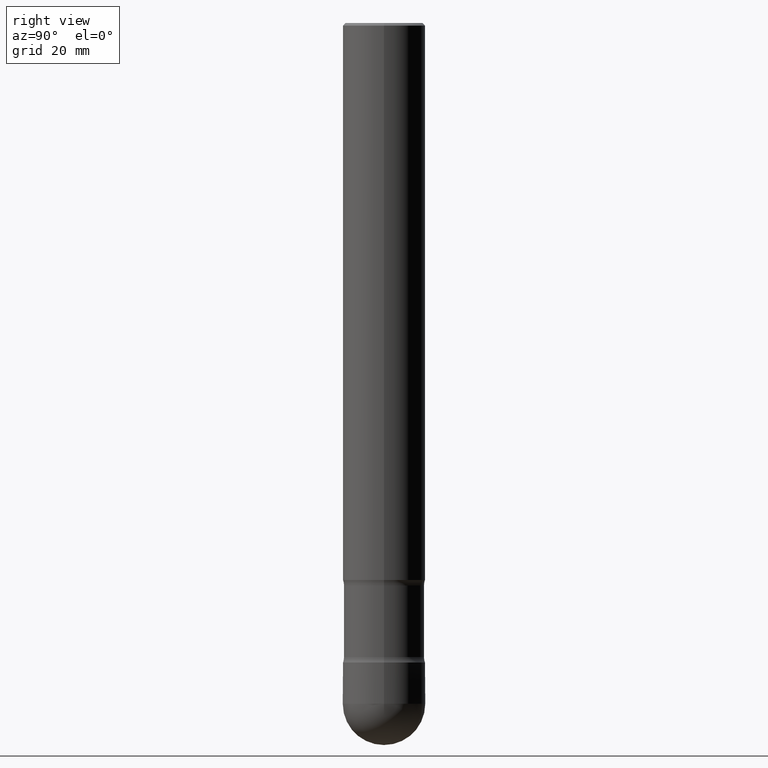
[diagram: clean part render]
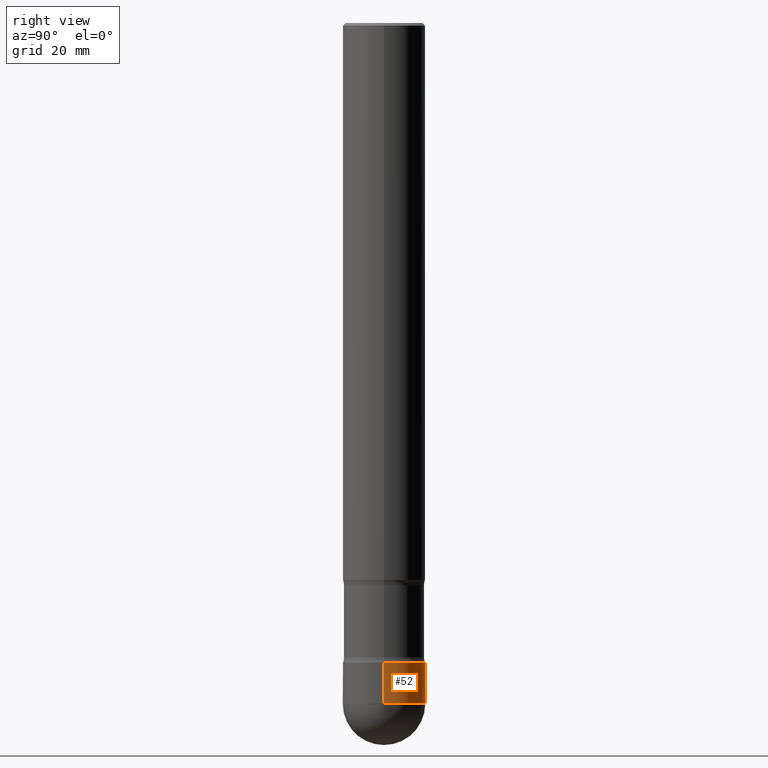
[diagram: same view with one face highlighted and labeled with its STEP entity id]
A machine part, right view. The second image highlights one B-rep face of the part: STEP entity #52.
In plain terms, the highlighted cylindrical surface (partial cylindrical patch) has radius 7.9997 mm, axis along (-0, 0, 1).
Its self-contained STEP definition (entity closure, byte-faithful):
#7 = DIRECTION ( 'NONE',  ( 1.000000000000000000, -6.982962677686271444E-15, 0.000000000000000000 ) ) ;
#10 = CIRCLE ( 'NONE', #543, 0.3149499999999991195 ) ;
#20 = ORIENTED_EDGE ( 'NONE', *, *, #110, .T. ) ;
#50 = VECTOR ( 'NONE', #412, 39.37007874015748143 ) ;
#52 = ADVANCED_FACE ( 'NONE', ( #314 ), #486, .T. ) ;
#58 = CARTESIAN_POINT ( 'NONE',  ( 0.3149499999999991195, -1.979416786726996296E-14, -5.196850000000000414 ) ) ;
#65 = CARTESIAN_POINT ( 'NONE',  ( -0.3149499999999991195, 2.237854346276429279E-15, -1.549218606675778192E-29 ) ) ;
#70 = LINE ( 'NONE', #420, #298 ) ;
#82 = CARTESIAN_POINT ( 'NONE',  ( 1.193853416491521798E-28, -1.704506274809835102E-14, -4.881899999999999906 ) ) ;
#85 = EDGE_LOOP ( 'NONE', ( #20, #125, #493, #282, #203 ) ) ;
#107 = DIRECTION ( 'NONE',  ( 1.000000000000000000, -6.982962677686271444E-15, 0.000000000000000000 ) ) ;
#110 = EDGE_CURVE ( 'NONE', #130, #199, #249, .T. ) ;
#125 = ORIENTED_EDGE ( 'NONE', *, *, #275, .T. ) ;
#130 = VERTEX_POINT ( 'NONE', #317 ) ;
#141 = DIRECTION ( 'NONE',  ( 1.000000000000000000, -6.982962677686266711E-15, 4.876176775795935793E-29 ) ) ;
#144 = CARTESIAN_POINT ( 'NONE',  ( 0.000000000000000000, 0.000000000000000000, 0.000000000000000000 ) ) ;
#148 = DIRECTION ( 'NONE',  ( -2.445468806185136597E-29, 3.491481338843145583E-15, 1.000000000000000000 ) ) ;
#161 = CARTESIAN_POINT ( 'NONE',  ( 1.270873456542322947E-28, -1.814470479576700463E-14, -5.196850000000000414 ) ) ;
#182 = CARTESIAN_POINT ( 'NONE',  ( 1.270873456542322947E-28, -1.814470479576700463E-14, -5.196850000000000414 ) ) ;
#197 = CARTESIAN_POINT ( 'NONE',  ( -0.3149499999999991195, -1.535702942565624815E-14, -5.196850000000000414 ) ) ;
#199 = VERTEX_POINT ( 'NONE', #197 ) ;
#203 = ORIENTED_EDGE ( 'NONE', *, *, #227, .T. ) ;
#211 = VERTEX_POINT ( 'NONE', #324 ) ;
#227 = EDGE_CURVE ( 'NONE', #452, #130, #10, .T. ) ;
#231 = CIRCLE ( 'NONE', #312, 0.3149499999999991195 ) ;
#236 = DIRECTION ( 'NONE',  ( -2.445468806185136597E-29, 3.491481338843145583E-15, 1.000000000000000000 ) ) ;
#249 = CIRCLE ( 'NONE', #468, 0.3149499999999991195 ) ;
#254 = EDGE_CURVE ( 'NONE', #452, #211, #70, .T. ) ;
#275 = EDGE_CURVE ( 'NONE', #199, #334, #456, .T. ) ;
#282 = ORIENTED_EDGE ( 'NONE', *, *, #254, .F. ) ;
#298 = VECTOR ( 'NONE', #327, 39.37007874015748143 ) ;
#312 = AXIS2_PLACEMENT_3D ( 'NONE', #82, #430, #521 ) ;
#314 = FACE_OUTER_BOUND ( 'NONE', #85, .T. ) ;
#317 = CARTESIAN_POINT ( 'NONE',  ( 2.199284095337412933E-15, 0.3149499999999813005, -5.196850000000001302 ) ) ;
#324 = CARTESIAN_POINT ( 'NONE',  ( 0.3149499999999991195, -1.924434684343563300E-14, -4.881899999999999906 ) ) ;
#327 = DIRECTION ( 'NONE',  ( -2.445468806185136877E-29, 3.491481338843145188E-15, 1.000000000000000000 ) ) ;
#334 = VERTEX_POINT ( 'NONE', #523 ) ;
#381 = DIRECTION ( 'NONE',  ( -2.445468806185136597E-29, 3.491481338843145583E-15, 1.000000000000000000 ) ) ;
#384 = EDGE_CURVE ( 'NONE', #211, #334, #231, .T. ) ;
#412 = DIRECTION ( 'NONE',  ( -2.445468806185136877E-29, 3.491481338843145188E-15, 1.000000000000000000 ) ) ;
#420 = CARTESIAN_POINT ( 'NONE',  ( 0.3149499999999991195, -2.199284095337283560E-15, 1.535751875536925646E-29 ) ) ;
#430 = DIRECTION ( 'NONE',  ( -2.445468806185136597E-29, 3.491481338843145583E-15, 1.000000000000000000 ) ) ;
#452 = VERTEX_POINT ( 'NONE', #58 ) ;
#456 = LINE ( 'NONE', #65, #50 ) ;
#468 = AXIS2_PLACEMENT_3D ( 'NONE', #182, #236, #7 ) ;
#486 = CYLINDRICAL_SURFACE ( 'NONE', #546, 0.3149499999999991195 ) ;
#493 = ORIENTED_EDGE ( 'NONE', *, *, #384, .F. ) ;
#521 = DIRECTION ( 'NONE',  ( 1.000000000000000000, -6.982962677686265133E-15, 0.000000000000000000 ) ) ;
#523 = CARTESIAN_POINT ( 'NONE',  ( -0.3149499999999991195, -1.535702942565624815E-14, -4.881899999999999906 ) ) ;
#543 = AXIS2_PLACEMENT_3D ( 'NONE', #161, #381, #107 ) ;
#546 = AXIS2_PLACEMENT_3D ( 'NONE', #144, #148, #141 ) ;